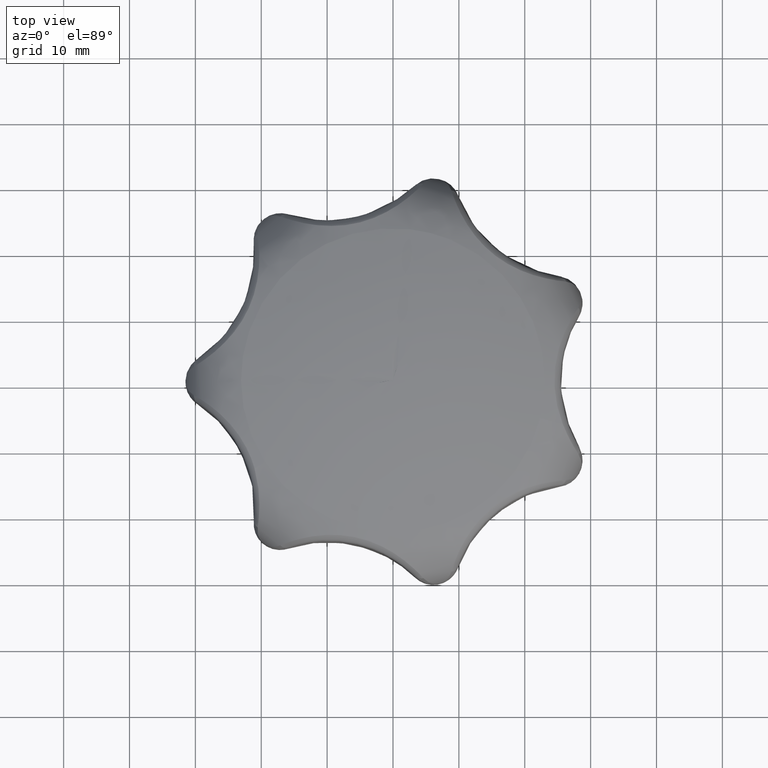
[diagram: clean part render]
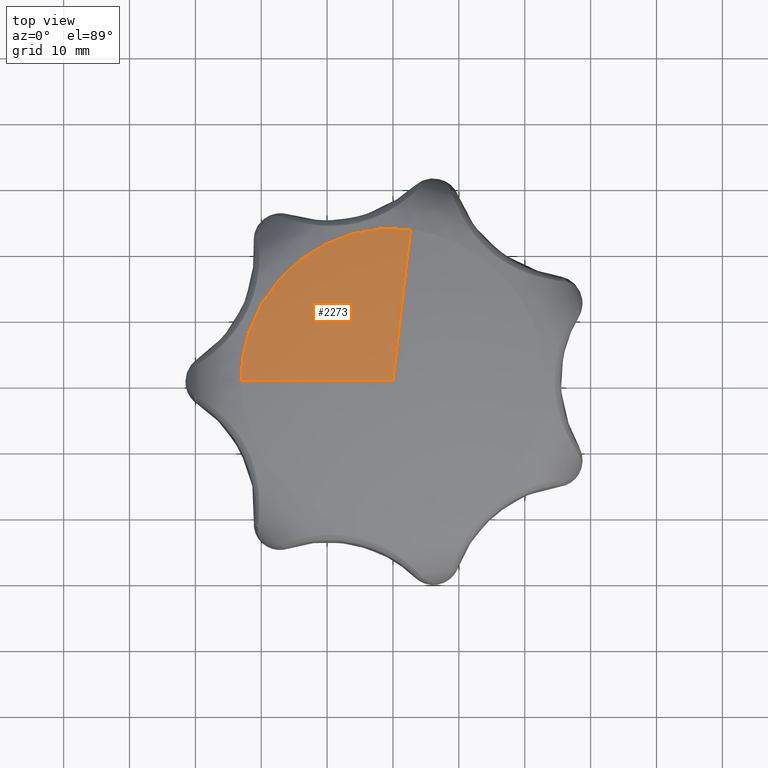
[diagram: same view with one face highlighted and labeled with its STEP entity id]
A machine part, top view. The second image highlights one B-rep face of the part: STEP entity #2273.
In plain terms, the highlighted face is a freeform B-spline surface patch.
Its self-contained STEP definition (entity closure, byte-faithful):
#1637=CARTESIAN_POINT('',(-23.072103738248121,0.0,37.381712270582902));
#1638=VERTEX_POINT('',#1637);
#1652=CARTESIAN_POINT('',(2.664004385301511,22.917803858942150,37.381708715213257));
#1653=VERTEX_POINT('',#1652);
#1654=CARTESIAN_POINT('',(2.664004385301511,22.917803858942150,37.381708715213257));
#1655=CARTESIAN_POINT('',(1.336471975756455,23.072118521883535,37.381708806910630));
#1656=CARTESIAN_POINT('',(0.000000808300706,23.072118521869509,37.381708909884502));
#1657=CARTESIAN_POINT('',(-23.072110320926704,23.072118521627235,37.381710687569317));
#1658=CARTESIAN_POINT('',(-23.072103738248121,0.0,37.381712270582902));
#1666=(BOUNDED_CURVE()B_SPLINE_CURVE(2,(#1654,#1655,#1656,#1657,#1658),.UNSPECIFIED.,.F.,.U.)B_SPLINE_CURVE_WITH_KNOTS((3,2,3),(0.729999999981632,0.750000000000000,1.0),.UNSPECIFIED.)CURVE()GEOMETRIC_REPRESENTATION_ITEM()RATIONAL_B_SPLINE_CURVE((0.956886118154506,0.976568542473404,1.0,0.707106781186547,1.0))REPRESENTATION_ITEM(''));
#1667=EDGE_CURVE('',#1653,#1638,#1666,.T.);
#2211=CARTESIAN_POINT('',(-3.135025E-014,3.341508E-014,39.994836274222799));
#2212=VERTEX_POINT('',#2211);
#2213=CARTESIAN_POINT('',(2.664004385301510,22.917803858942150,37.381708715213257));
#2214=CARTESIAN_POINT('',(1.350688352004536,11.619654573859913,40.117164692261561));
#2215=CARTESIAN_POINT('',(8.337425E-015,6.387044E-014,39.994836274222806));
#2223=(BOUNDED_CURVE()B_SPLINE_CURVE(2,(#2213,#2214,#2215),.UNSPECIFIED.,.F.,.U.)B_SPLINE_CURVE_WITH_KNOTS((3,3),(0.920574090360334,1.0),.UNSPECIFIED.)CURVE()GEOMETRIC_REPRESENTATION_ITEM()RATIONAL_B_SPLINE_CURVE((0.909742516092001,0.925940717295557,0.956886118190660))REPRESENTATION_ITEM(''));
#2224=EDGE_CURVE('',#1653,#2212,#2223,.T.);
#2226=CARTESIAN_POINT('',(-23.072103738248117,0.0,37.381712270582895));
#2227=CARTESIAN_POINT('',(-11.697886597596890,0.0,40.117164611542634));
#2228=CARTESIAN_POINT('',(-7.220786E-014,0.0,39.994836274222799));
#2236=(BOUNDED_CURVE()B_SPLINE_CURVE(2,(#2226,#2227,#2228),.UNSPECIFIED.,.F.,.U.)B_SPLINE_CURVE_WITH_KNOTS((3,3),(0.920574141074954,1.0),.UNSPECIFIED.)CURVE()GEOMETRIC_REPRESENTATION_ITEM()RATIONAL_B_SPLINE_CURVE((0.950732296647576,0.967660330160794,1.0))REPRESENTATION_ITEM(''));
#2237=EDGE_CURVE('',#1638,#2212,#2236,.T.);
#2245=CARTESIAN_POINT('',(-24.227870882507553,0.0,37.096037387248593));
#2246=CARTESIAN_POINT('',(-12.302745189134187,0.0,40.123489800729502));
#2247=CARTESIAN_POINT('',(-7.220786E-014,0.0,39.994836274222799));
#2248=CARTESIAN_POINT('',(-24.227870882507503,24.227870882507546,37.096037387248600));
#2249=CARTESIAN_POINT('',(-12.302745189134125,12.302745189134182,40.123489800729509));
#2250=CARTESIAN_POINT('',(0.0,7.220786E-014,39.994836274222806));
#2251=CARTESIAN_POINT('',(0.0,24.227870882507553,37.096037387248593));
#2252=CARTESIAN_POINT('',(0.0,12.302745189134187,40.123489800729502));
#2253=CARTESIAN_POINT('',(0.0,7.220786E-014,39.994836274222799));
#2254=CARTESIAN_POINT('',(1.403419508145565,24.227870882507549,37.096037387248586));
#2255=CARTESIAN_POINT('',(0.712646715260516,12.302745189134184,40.123489800729502));
#2256=CARTESIAN_POINT('',(4.182700E-015,6.802516E-014,39.994836274222799));
#2257=CARTESIAN_POINT('',(2.797452439684588,24.065826130576934,37.096037387248586));
#2258=CARTESIAN_POINT('',(1.420526991870744,12.220459985374156,40.123489800729494));
#2259=CARTESIAN_POINT('',(8.337425E-015,6.387044E-014,39.994836274222813));
#2267=(BOUNDED_SURFACE()B_SPLINE_SURFACE(2,2,((#2245,#2248,#2251,#2254,#2257),(#2246,#2249,#2252,#2255,#2258),(#2247,#2250,#2253,#2256,#2259)),.UNSPECIFIED.,.F.,.F.,.U.)B_SPLINE_SURFACE_WITH_KNOTS((3,3),(3,2,3),(0.916606743770838,1.0),(0.0,0.250000000000000,0.270000000000000),.UNSPECIFIED.)GEOMETRIC_REPRESENTATION_ITEM()RATIONAL_B_SPLINE_SURFACE(((0.949079607390312,0.671100626271556,0.949079607390312,0.926841288900812,0.908161101369631),(0.966044932849735,0.683096922948950,0.966044932849735,0.943409092057672,0.924394985792339),(1.0,0.707106781186548,1.0,0.976568542494924,0.956886118190660)))REPRESENTATION_ITEM('')SURFACE());
#2268=ORIENTED_EDGE('',*,*,#1667,.T.);
#2269=ORIENTED_EDGE('',*,*,#2237,.T.);
#2270=ORIENTED_EDGE('',*,*,#2224,.F.);
#2271=EDGE_LOOP('',(#2268,#2269,#2270));
#2272=FACE_OUTER_BOUND('',#2271,.T.);
#2273=ADVANCED_FACE('',(#2272),#2267,.T.);